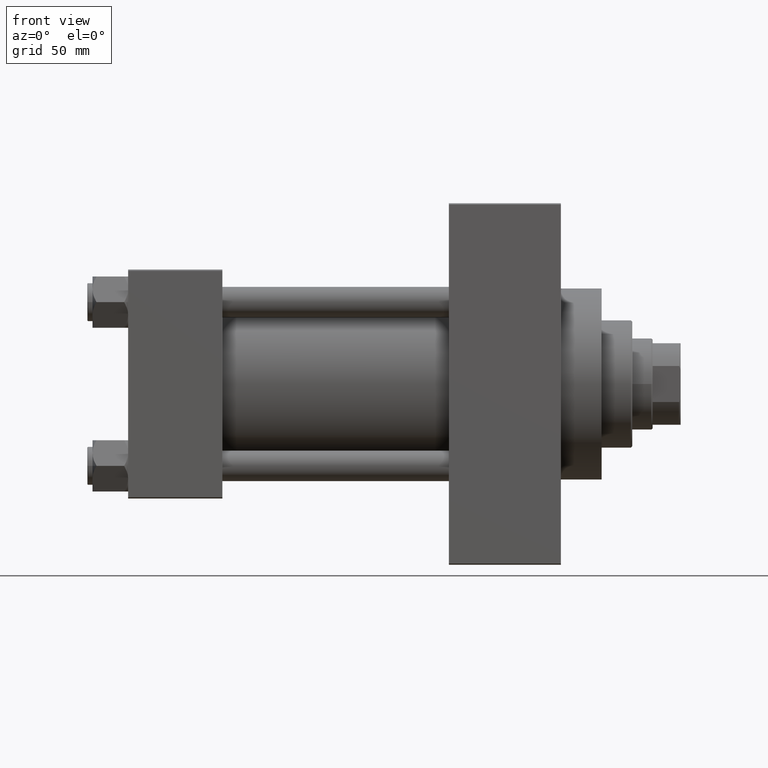
[diagram: clean part render]
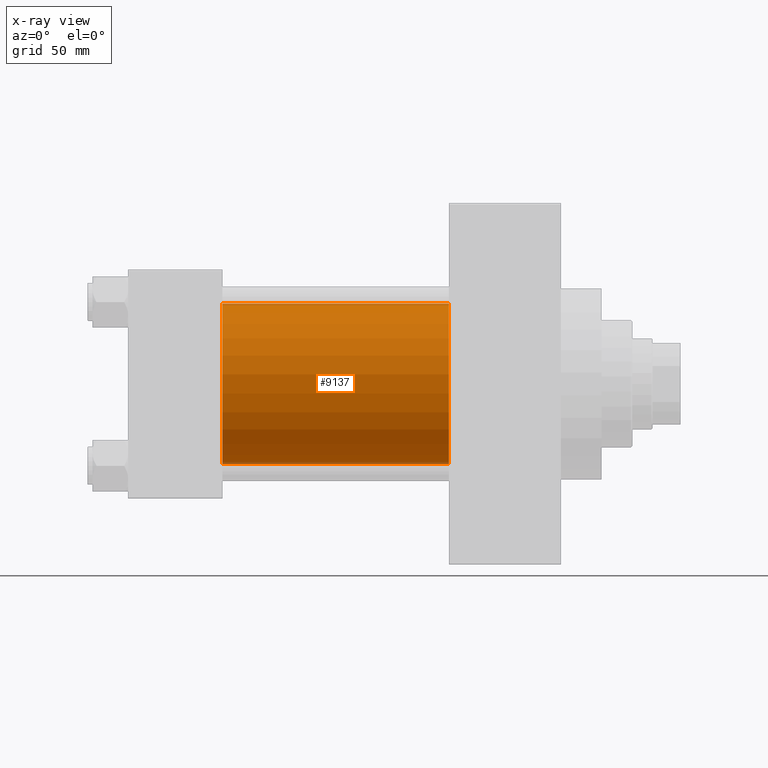
[diagram: x-ray — body ghosted, one internal face saturated and labeled with its STEP entity id]
A machine part, front view, then the same camera in x-ray: the body is ghosted and one INTERNAL B-rep face — a face not visible from any outside direction — is saturated and labeled: STEP entity #9137.
In plain terms, the highlighted cylindrical surface (partial cylindrical patch) has radius 31.5 mm, axis along (-1, -0, -0).
Its self-contained STEP definition (entity closure, byte-faithful):
#4764 = VERTEX_POINT ( 'NONE', #24399 ) ;
#5412 = ORIENTED_EDGE ( 'NONE', *, *, #42961, .F. ) ;
#6751 = DIRECTION ( 'NONE',  ( -1.000000000000000000, -0.000000000000000000, -0.000000000000000000 ) ) ;
#9137 = ADVANCED_FACE ( 'NONE', ( #22885 ), #19053, .F. ) ;
#10947 = CARTESIAN_POINT ( 'NONE',  ( 37.00000000000000000, -2.602085213965210642E-15, 31.50000000000000000 ) ) ;
#11535 = AXIS2_PLACEMENT_3D ( 'NONE', #47362, #14515, #20998 ) ;
#11806 = VERTEX_POINT ( 'NONE', #10947 ) ;
#11964 = CARTESIAN_POINT ( 'NONE',  ( 126.0000000000000000, -2.602085213965210642E-15, 0.000000000000000000 ) ) ;
#12735 = LINE ( 'NONE', #37905, #21309 ) ;
#12776 = CIRCLE ( 'NONE', #28103, 31.50000000000000000 ) ;
#14515 = DIRECTION ( 'NONE',  ( 1.000000000000000000, 0.000000000000000000, 0.000000000000000000 ) ) ;
#16139 = CIRCLE ( 'NONE', #11535, 31.50000000000000000 ) ;
#17116 = EDGE_CURVE ( 'NONE', #17913, #4764, #35292, .T. ) ;
#17325 = ORIENTED_EDGE ( 'NONE', *, *, #39690, .T. ) ;
#17913 = VERTEX_POINT ( 'NONE', #30823 ) ;
#19053 = CYLINDRICAL_SURFACE ( 'NONE', #34317, 31.50000000000000000 ) ;
#19099 = VECTOR ( 'NONE', #6751, 1000.000000000000000 ) ;
#20005 = EDGE_CURVE ( 'NONE', #11806, #4764, #16139, .T. ) ;
#20998 = DIRECTION ( 'NONE',  ( 0.000000000000000000, 0.000000000000000000, -1.000000000000000000 ) ) ;
#21309 = VECTOR ( 'NONE', #27126, 1000.000000000000000 ) ;
#22668 = ORIENTED_EDGE ( 'NONE', *, *, #20005, .F. ) ;
#22885 = FACE_OUTER_BOUND ( 'NONE', #43067, .T. ) ;
#24399 = CARTESIAN_POINT ( 'NONE',  ( 37.00000000000000000, 1.255552203348951850E-15, -31.50000000000000000 ) ) ;
#25532 = ORIENTED_EDGE ( 'NONE', *, *, #17116, .T. ) ;
#26123 = DIRECTION ( 'NONE',  ( 0.000000000000000000, 0.000000000000000000, -1.000000000000000000 ) ) ;
#26599 = DIRECTION ( 'NONE',  ( 1.000000000000000000, 0.000000000000000000, 0.000000000000000000 ) ) ;
#27126 = DIRECTION ( 'NONE',  ( -1.000000000000000000, -0.000000000000000000, -0.000000000000000000 ) ) ;
#28103 = AXIS2_PLACEMENT_3D ( 'NONE', #11964, #26599, #26123 ) ;
#30090 = CARTESIAN_POINT ( 'NONE',  ( 126.0000000000000000, -2.602085213965210642E-15, 0.000000000000000000 ) ) ;
#30823 = CARTESIAN_POINT ( 'NONE',  ( 126.0000000000000000, 1.255552203348951850E-15, -31.50000000000000000 ) ) ;
#34317 = AXIS2_PLACEMENT_3D ( 'NONE', #30090, #44701, #37506 ) ;
#35292 = LINE ( 'NONE', #43184, #19099 ) ;
#37506 = DIRECTION ( 'NONE',  ( 0.000000000000000000, 0.000000000000000000, 1.000000000000000000 ) ) ;
#37905 = CARTESIAN_POINT ( 'NONE',  ( 126.0000000000000000, -2.602085213965210642E-15, 31.50000000000000000 ) ) ;
#38454 = CARTESIAN_POINT ( 'NONE',  ( 126.0000000000000000, -2.602085213965210642E-15, 31.50000000000000000 ) ) ;
#39690 = EDGE_CURVE ( 'NONE', #44603, #17913, #12776, .T. ) ;
#42961 = EDGE_CURVE ( 'NONE', #44603, #11806, #12735, .T. ) ;
#43067 = EDGE_LOOP ( 'NONE', ( #17325, #25532, #22668, #5412 ) ) ;
#43184 = CARTESIAN_POINT ( 'NONE',  ( 126.0000000000000000, 1.255552203348951850E-15, -31.50000000000000000 ) ) ;
#44603 = VERTEX_POINT ( 'NONE', #38454 ) ;
#44701 = DIRECTION ( 'NONE',  ( -1.000000000000000000, -0.000000000000000000, -0.000000000000000000 ) ) ;
#47362 = CARTESIAN_POINT ( 'NONE',  ( 37.00000000000000000, -2.602085213965210642E-15, 0.000000000000000000 ) ) ;